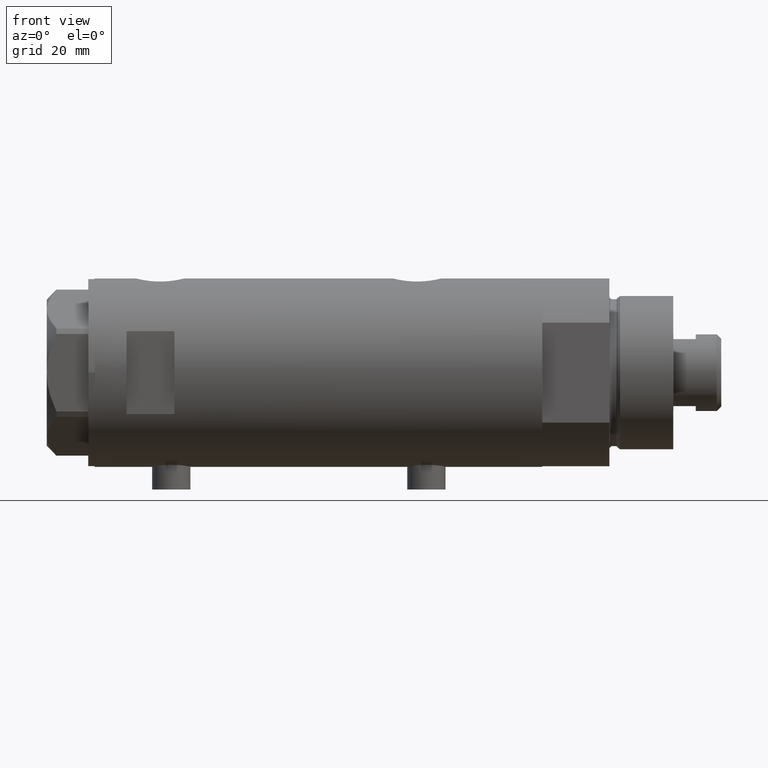
[diagram: clean part render]
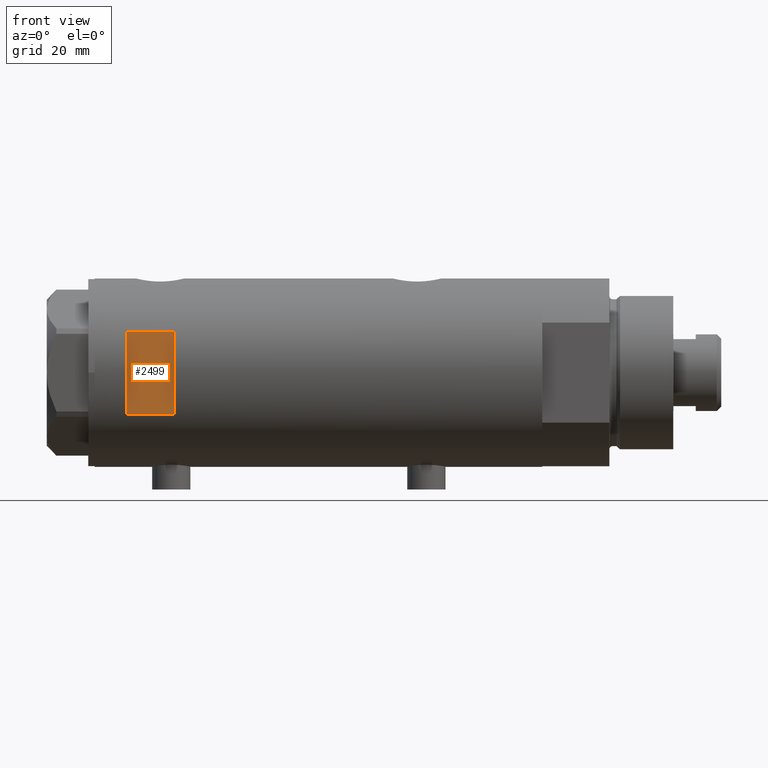
[diagram: same view with one face highlighted and labeled with its STEP entity id]
A machine part, front view. The second image highlights one B-rep face of the part: STEP entity #2499.
In plain terms, the highlighted planar face has unit normal (-0, 1, 0).
Its self-contained STEP definition (entity closure, byte-faithful):
#105 = ORIENTED_EDGE ( 'NONE', *, *, #1826, .T. ) ;
#108 = CARTESIAN_POINT ( 'NONE',  ( -12.96148139681573319, -26.49999999999999645, -70.09999999999999432 ) ) ;
#211 = DIRECTION ( 'NONE',  ( 0.000000000000000000, 0.000000000000000000, 1.000000000000000000 ) ) ;
#253 = CARTESIAN_POINT ( 'NONE',  ( 12.96148139681573319, -26.49999999999999645, -70.09999999999999432 ) ) ;
#399 = FACE_OUTER_BOUND ( 'NONE', #2992, .T. ) ;
#412 = EDGE_CURVE ( 'NONE', #1449, #3681, #708, .T. ) ;
#708 = LINE ( 'NONE', #108, #1718 ) ;
#846 = VERTEX_POINT ( 'NONE', #1185 ) ;
#1150 = LINE ( 'NONE', #1194, #3146 ) ;
#1185 = CARTESIAN_POINT ( 'NONE',  ( 12.96148139681573319, -26.49999999999998934, 45.09999999999998721 ) ) ;
#1194 = CARTESIAN_POINT ( 'NONE',  ( -29.50000000000000355, -26.50000000000000355, 60.09999999999998721 ) ) ;
#1441 = CARTESIAN_POINT ( 'NONE',  ( -29.50000000000000355, -26.50000000000000355, 60.09999999999998721 ) ) ;
#1449 = VERTEX_POINT ( 'NONE', #3610 ) ;
#1718 = VECTOR ( 'NONE', #3124, 1000.000000000000000 ) ;
#1826 = EDGE_CURVE ( 'NONE', #3681, #846, #4099, .T. ) ;
#1949 = ORIENTED_EDGE ( 'NONE', *, *, #3035, .F. ) ;
#2136 = VECTOR ( 'NONE', #4492, 1000.000000000000000 ) ;
#2464 = AXIS2_PLACEMENT_3D ( 'NONE', #1441, #2967, #4479 ) ;
#2499 = ADVANCED_FACE ( 'NONE', ( #399 ), #4783, .F. ) ;
#2967 = DIRECTION ( 'NONE',  ( 0.000000000000000000, 1.000000000000000000, 0.000000000000000000 ) ) ;
#2992 = EDGE_LOOP ( 'NONE', ( #4274, #105, #3158, #1949 ) ) ;
#3035 = EDGE_CURVE ( 'NONE', #1449, #3387, #1150, .T. ) ;
#3112 = EDGE_CURVE ( 'NONE', #846, #3387, #3932, .T. ) ;
#3124 = DIRECTION ( 'NONE',  ( -0.000000000000000000, -0.000000000000000000, -1.000000000000000000 ) ) ;
#3146 = VECTOR ( 'NONE', #4212, 1000.000000000000000 ) ;
#3158 = ORIENTED_EDGE ( 'NONE', *, *, #3112, .T. ) ;
#3301 = VECTOR ( 'NONE', #211, 1000.000000000000000 ) ;
#3387 = VERTEX_POINT ( 'NONE', #3467 ) ;
#3467 = CARTESIAN_POINT ( 'NONE',  ( 12.96148139681573319, -26.49999999999998934, 60.09999999999998721 ) ) ;
#3610 = CARTESIAN_POINT ( 'NONE',  ( -12.96148139681573319, -26.49999999999998934, 60.09999999999998721 ) ) ;
#3681 = VERTEX_POINT ( 'NONE', #4082 ) ;
#3932 = LINE ( 'NONE', #253, #3301 ) ;
#4082 = CARTESIAN_POINT ( 'NONE',  ( -12.96148139681573319, -26.49999999999998934, 45.09999999999998721 ) ) ;
#4099 = LINE ( 'NONE', #4791, #2136 ) ;
#4212 = DIRECTION ( 'NONE',  ( 1.000000000000000000, -0.000000000000000000, -0.000000000000000000 ) ) ;
#4274 = ORIENTED_EDGE ( 'NONE', *, *, #412, .T. ) ;
#4479 = DIRECTION ( 'NONE',  ( 0.000000000000000000, -0.000000000000000000, 1.000000000000000000 ) ) ;
#4492 = DIRECTION ( 'NONE',  ( 1.000000000000000000, -0.000000000000000000, -0.000000000000000000 ) ) ;
#4783 = PLANE ( 'NONE',  #2464 ) ;
#4791 = CARTESIAN_POINT ( 'NONE',  ( -29.50000000000000355, -26.50000000000000355, 45.09999999999998721 ) ) ;